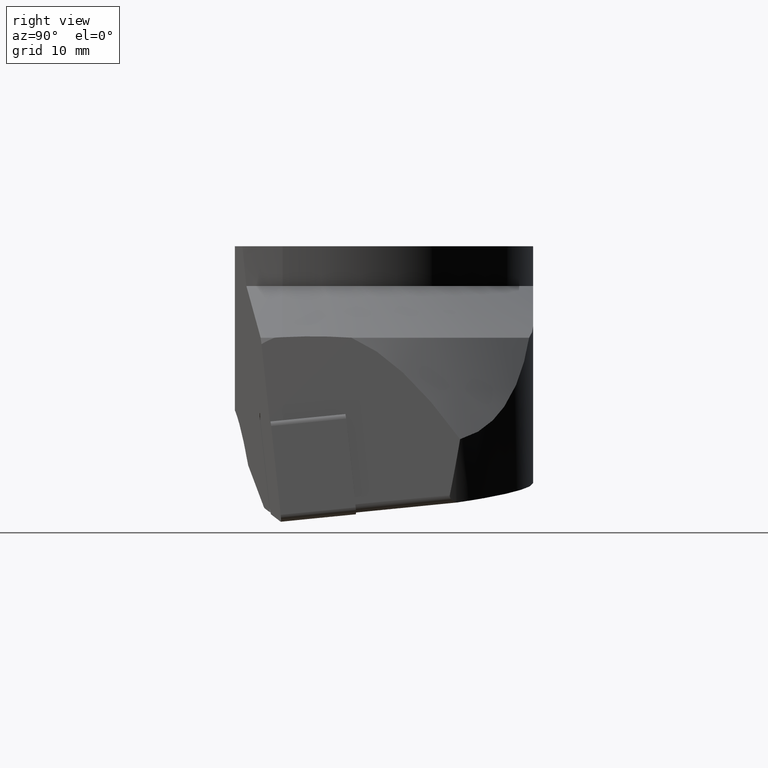
[diagram: clean part render]
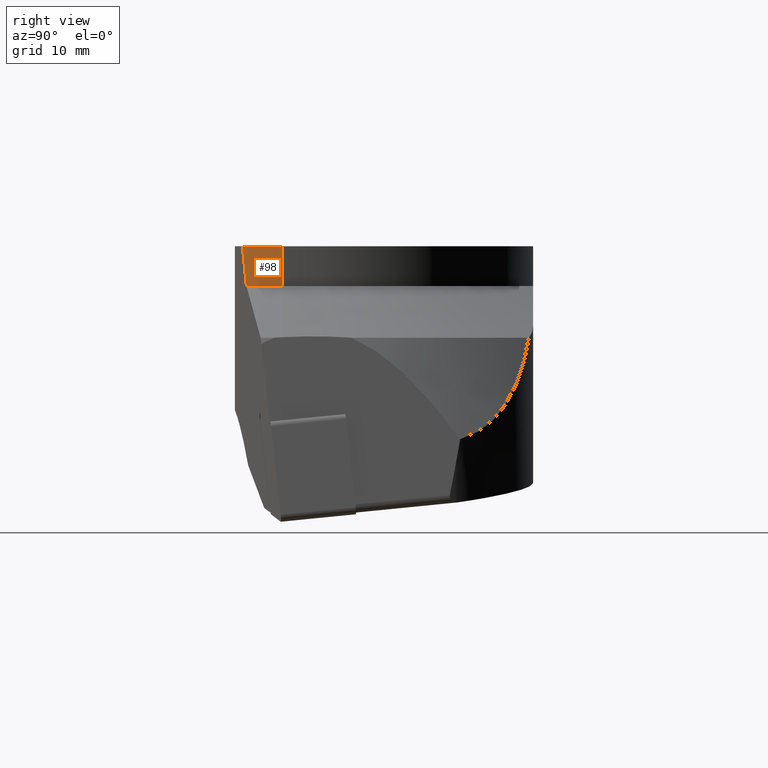
[diagram: same view with one face highlighted and labeled with its STEP entity id]
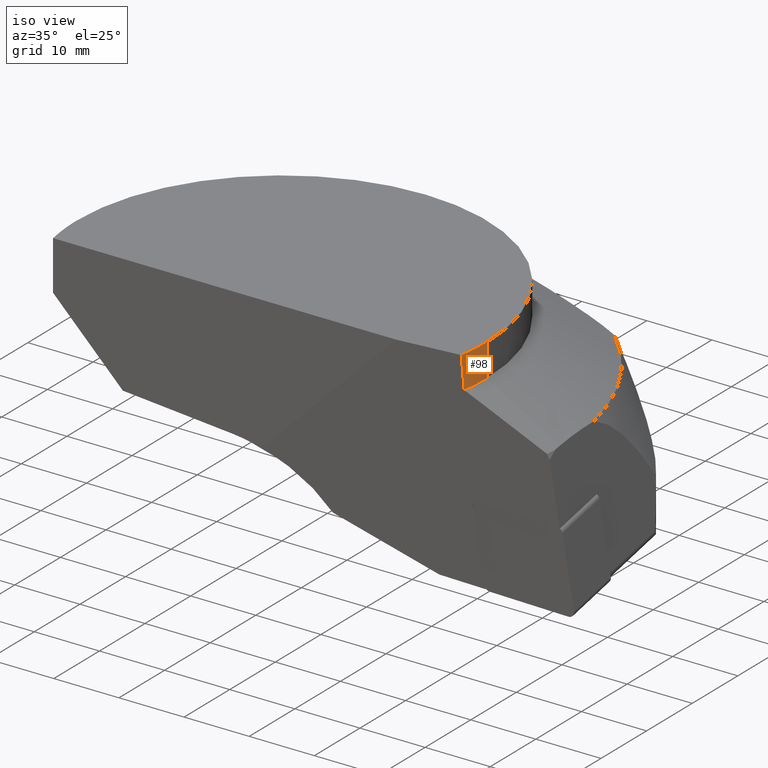
[diagram: same view with one face highlighted and labeled with its STEP entity id]
A machine part, right view. The second image highlights one B-rep face of the part: STEP entity #98.
A second angle (iso view) of the same face is appended — the face is thin or edge-on in the first view.
In plain terms, the highlighted cylindrical surface (partial cylindrical patch) has radius 31.5 mm, axis along (-0, 0, -1).
Its self-contained STEP definition (entity closure, byte-faithful):
#98=ADVANCED_FACE('',(#154),#155,.T.);
#154=FACE_OUTER_BOUND('',#218,.T.);
#155=CYLINDRICAL_SURFACE('',#219,31.5);
#218=EDGE_LOOP('',(#440,#441,#442,#443));
#219=AXIS2_PLACEMENT_3D('',#444,#445,#446);
#440=ORIENTED_EDGE('',*,*,#576,.F.);
#441=ORIENTED_EDGE('',*,*,#586,.T.);
#442=ORIENTED_EDGE('',*,*,#551,.T.);
#443=ORIENTED_EDGE('',*,*,#584,.F.);
#444=CARTESIAN_POINT('',(-9.99200722162641E-015,4.44089209850063E-015,-1.00000000311114));
#445=DIRECTION('',(-0.0,0.0,-1.0));
#446=DIRECTION('',(0.0806189171690596,0.996744997576857,0.0));
#551=EDGE_CURVE('',#671,#669,#672,.T.);
#576=EDGE_CURVE('',#714,#715,#716,.T.);
#584=EDGE_CURVE('',#715,#669,#726,.T.);
#586=EDGE_CURVE('',#714,#671,#728,.T.);
#669=VERTEX_POINT('',#846);
#671=VERTEX_POINT('',#848);
#672=ELLIPSE('',#849,320.088629986451,31.5);
#714=VERTEX_POINT('',#950);
#715=VERTEX_POINT('',#951);
#716=LINE('',#952,#953);
#726=CIRCLE('',#971,31.5);
#728=CIRCLE('',#973,31.5);
#846=CARTESIAN_POINT('',(31.1685136542487,-4.5578236675974,-5.0));
#848=CARTESIAN_POINT('',(31.0905371822528,-5.06245965109435,0.0));
#849=AXIS2_PLACEMENT_3D('',#1071,#1072,#1073);
#950=CARTESIAN_POINT('',(31.5,3.85751E-015,0.0));
#951=CARTESIAN_POINT('',(31.5,6.569822E-015,-5.0));
#952=CARTESIAN_POINT('',(31.5,3.85751E-015,0.0));
#953=VECTOR('',#1105,5.0);
#971=AXIS2_PLACEMENT_3D('',#1122,#1123,#1124);
#973=AXIS2_PLACEMENT_3D('',#1128,#1129,#1130);
#1071=CARTESIAN_POINT('',(0.0,3.581734E-014,-82.0323087384152));
#1072=DIRECTION('',(-0.098410243390872,0.990268068747763,0.0984102434420538));
#1073=DIRECTION('',(0.00973181491035901,-0.0979278703581101,0.995145930999909));
#1105=DIRECTION('',(0.0,0.0,-1.0));
#1122=CARTESIAN_POINT('',(0.0,1.608123E-015,-5.0));
#1123=DIRECTION('',(0.0,0.0,-1.0));
#1124=DIRECTION('',(1.0,0.0,0.0));
#1128=CARTESIAN_POINT('',(0.0,-6.123234E-016,0.0));
#1129=DIRECTION('',(0.0,0.0,-1.0));
#1130=DIRECTION('',(1.0,0.0,0.0));